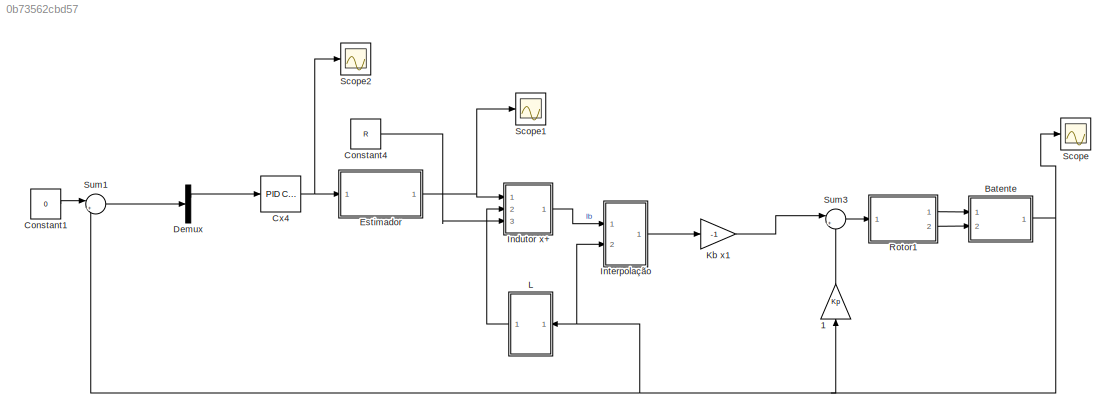
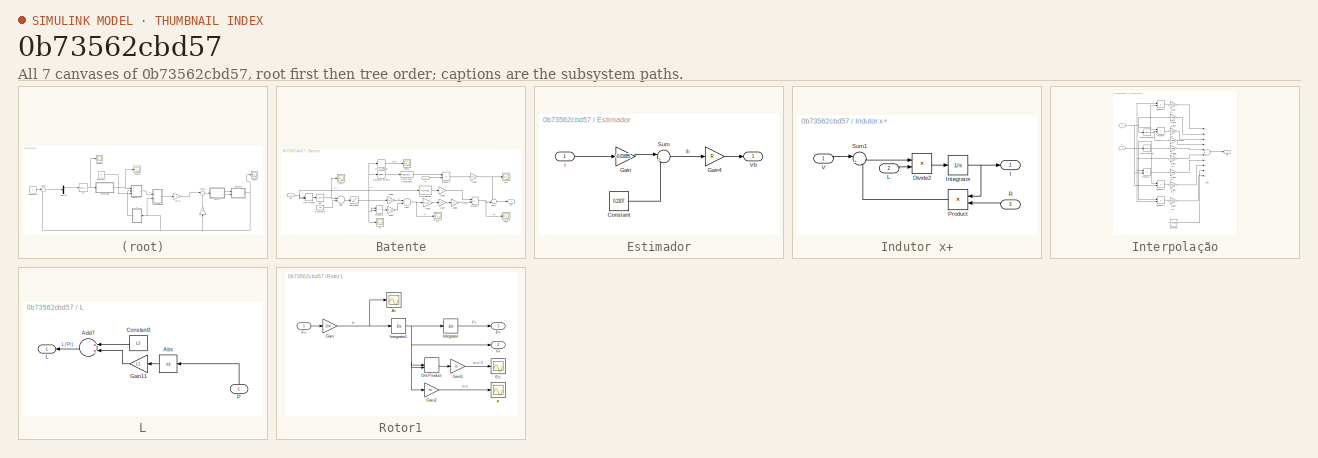
[diagram: thumbnail index - all 7 canvases of the model, root first then tree order]
MODEL slx_0b73562cbd57
KIND model
BLOCK [Gain]  1
  Gain = Kp
  OutDataTypeStr = Inherit: Inherit via internal rule
  ParamDataTypeStr = Inherit: Inherit via internal rule
  SaturateOnIntegerOverflow = off
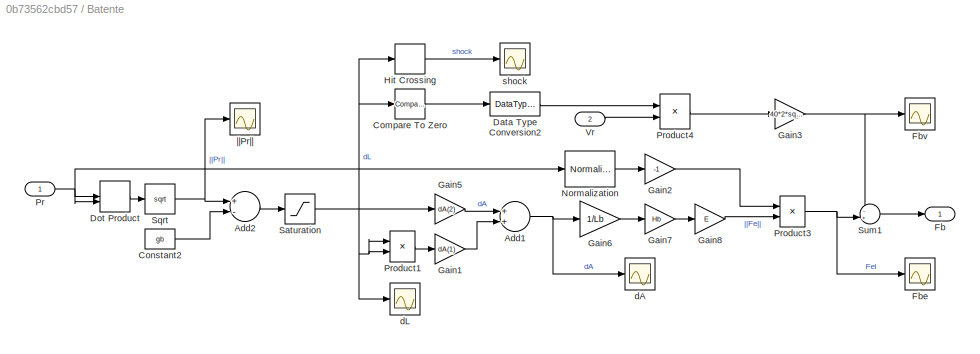
BLOCK [SubSystem] Batente
  FunctionWithSeparateData = off
  MaskHideContents = off
  MinAlgLoopOccurrences = off
  Opaque = off
  Ports = [2, 1]
  PropExecContextOutsideSubsystem = off
  RTWSystemCode = Auto
  RequestExecContextInheritance = off
BLOCK [Sum] Batente/Add1
  InputSameDT = off
  OutDataTypeStr = Inherit: Inherit via internal rule
  Ports = [2, 1]
  SaturateOnIntegerOverflow = off
BLOCK [Sum] Batente/Add2
  InputSameDT = off
  Inputs = +-
  OutDataTypeStr = Inherit: Inherit via internal rule
  Ports = [2, 1]
  SaturateOnIntegerOverflow = off
BLOCK [Reference] Batente/Compare To Zero  REF=simulink/Logic and Bit
Operations/Compare
To Zero
  OutDataTypeStr = boolean
  Ports = [1, 1]
  SourceBlock = simulink/Logic and Bit\nOperations/Compare\nTo Zero
  SourceType = Compare To Zero
  ZeroCross = on
  relop = >
BLOCK [Constant] Batente/Constant2
  Value = gb
BLOCK [DataTypeConversion] Batente/Data Type Conversion2
  RndMeth = Floor
  SaturateOnIntegerOverflow = off
BLOCK [DotProduct] Batente/Dot Product
  OutDataTypeStr = Inherit: Inherit via internal rule
BLOCK [Outport] Batente/Fb
  IconDisplay = Port number
BLOCK [Scope] Batente/Fbe
  DataFormat = StructureWithTime
  Floating = off
  LimitDataPoints = off
  NumInputPorts = 1
  Ports = [1]
  SampleTime = 0
  SaveName = ScopeData15
  ShowLegends = off
  TimeRange = 0.0002829354553492485
  YMax = 100000
  YMin = -100000
BLOCK [Scope] Batente/Fbv
  DataFormat = StructureWithTime
  Floating = off
  LimitDataPoints = off
  NumInputPorts = 1
  Ports = [1]
  SampleTime = 0
  SaveName = ScopeData8
  ShowLegends = off
  TimeRange = 0.1
  YMax = 225000
  YMin = -225000
BLOCK [Gain] Batente/Gain1
  Gain = dA(1)
  OutDataTypeStr = Inherit: Inherit via internal rule
  ParamDataTypeStr = Inherit: Inherit via internal rule
  SaturateOnIntegerOverflow = off
BLOCK [Gain] Batente/Gain2
  Gain = -1
  OutDataTypeStr = Inherit: Inherit via internal rule
  ParamDataTypeStr = Inherit: Inherit via internal rule
  SaturateOnIntegerOverflow = off
BLOCK [Gain] Batente/Gain3
  Gain = 40*2*sqrt(Kbb*m)
  OutDataTypeStr = Inherit: Inherit via internal rule
  ParamDataTypeStr = Inherit: Inherit via internal rule
  SaturateOnIntegerOverflow = off
BLOCK [Gain] Batente/Gain5
  Gain = dA(2)
  OutDataTypeStr = Inherit: Inherit via internal rule
  ParamDataTypeStr = Inherit: Inherit via internal rule
  SaturateOnIntegerOverflow = off
BLOCK [Gain] Batente/Gain6
  Gain = 1/Lb
  OutDataTypeStr = Inherit: Inherit via internal rule
  ParamDataTypeStr = Inherit: Inherit via internal rule
  SaturateOnIntegerOverflow = off
BLOCK [Gain] Batente/Gain7
  Gain = Hb
  OutDataTypeStr = Inherit: Inherit via internal rule
  ParamDataTypeStr = Inherit: Inherit via internal rule
  SaturateOnIntegerOverflow = off
BLOCK [Gain] Batente/Gain8
  Gain = E
  OutDataTypeStr = Inherit: Inherit via internal rule
  ParamDataTypeStr = Inherit: Inherit via internal rule
  SaturateOnIntegerOverflow = off
BLOCK [HitCross] Batente/Hit Crossing
  HitCrossingDirection = rising
  Ports = [1, 1]
BLOCK [Reference] Batente/Normalization  REF=dspmathops/Normalization
  Bias = 1e-10
  ColComp = on
  Dimension = 1
  LockScale = off
  NormOver = Each column
  NormType = 2-norm
  Ports = [1, 1]
  SourceBlock = dspmathops/Normalization
  SourceType = Normalization
  accumDataTypeStr = Inherit: Same as product output
  accumFracLength = 30
  accumLastDataTypeStr = Inherit: Same as product output
  accumMode = Same as product output
  accumWordLength = 32
  additionalParams = off
  allowOverrides = on
  outputDataTypeStr = Inherit: Same as product output
  outputFracLength = 32
  outputLastDataTypeStr = Inherit: Same as product output
  outputMax = []
  outputMin = []
  outputMode = Same as product output
  outputWordLength = 32
  overflowMode = off
  prodOutputDataTypeStr = Inherit: Same as input
  prodOutputFracLength = 32
  prodOutputLastDataTypeStr = Inherit: Same as input
  prodOutputMode = Same as input
  prodOutputWordLength = 32
  roundingMode = Floor
BLOCK [Inport] Batente/Pr
  IconDisplay = Port number
BLOCK [Product] Batente/Product1
  InputSameDT = off
  OutDataTypeStr = Inherit: Inherit via internal rule
  Ports = [2, 1]
  RndMeth = Floor
  SaturateOnIntegerOverflow = off
BLOCK [Product] Batente/Product3
  InputSameDT = off
  OutDataTypeStr = Inherit: Inherit via internal rule
  Ports = [2, 1]
  RndMeth = Floor
  SaturateOnIntegerOverflow = off
BLOCK [Product] Batente/Product4
  InputSameDT = off
  OutDataTypeStr = Inherit: Inherit via internal rule
  Ports = [2, 1]
  RndMeth = Floor
  SaturateOnIntegerOverflow = off
BLOCK [Saturate] Batente/Saturation
  InputPortMap = u0
  LowerLimit = 0
  Ports = [1, 1]
  UpperLimit = Inf
BLOCK [Sqrt] Batente/Sqrt
BLOCK [Sum] Batente/Sum1
  IconShape = round
  InputSameDT = off
  Inputs = -+|
  OutDataTypeStr = Inherit: Inherit via internal rule
  Ports = [2, 1]
  SaturateOnIntegerOverflow = off
BLOCK [Inport] Batente/Vr
  IconDisplay = Port number
  Port = 2
BLOCK [Scope] Batente/dA
  DataFormat = StructureWithTime
  Floating = off
  LimitDataPoints = off
  NumInputPorts = 1
  Ports = [1]
  SampleTime = 0
  SaveName = ScopeData4
  ShowLegends = off
  TimeRange = 0.0002829354553492485
  YMax = 3.9158e-05
  YMin = 3.91545e-05
BLOCK [Scope] Batente/dL
  DataFormat = StructureWithTime
  Floating = off
  LimitDataPoints = off
  NumInputPorts = 1
  Ports = [1]
  SampleTime = 0
  SaveName = ScopeData7
  ShowLegends = off
  TimeRange = 0.1
  YMax = 1.4315e-06
  YMin = 1.4215e-06
BLOCK [Scope] Batente/shock
  DataFormat = StructureWithTime
  Floating = off
  LimitDataPoints = off
  NumInputPorts = 1
  Ports = [1]
  SampleTime = 0
  SaveName = ScopeData19
  ShowLegends = off
  TimeRange = 0.0002829354553492485
  YMax = 5.54639e-16
  YMin = 5.54637e-16
BLOCK [Scope] Batente/||Pr||
  DataFormat = StructureWithTime
  Floating = off
  LimitDataPoints = off
  NumInputPorts = 1
  Ports = [1]
  SampleTime = 0
  SaveName = ScopeData18
  ShowLegends = off
  TimeRange = 0.0002829354553492485
  YMax = 0
  YMin = -2.75
BLOCK [Constant] Constant1
  Value = 0
BLOCK [Constant] Constant4
  Value = R
BLOCK [Reference] Cx4  REF=simulink/Continuous/PID Controller
  AntiWindupMode = none
  Controller = PID
  D = 0.00498268867902985
  DOutDataTypeStr = Inherit: Inherit via internal rule
  DOutMax = []
  DOutMin = []
  DParamDataTypeStr = Inherit: Inherit via internal rule
  DParamMax = []
  DParamMin = []
  ExternalReset = none
  FilterContinuousStateAttributes = ''
  FilterMethod = Forward Euler
  FilterOutDataTypeStr = Inherit: Inherit via internal rule
  FilterOutMax = []
  FilterOutMin = []
  FilterRTWStateStorageClass = Auto
  FilterStateMustResolveToSignalObject = off
  Form = Ideal
  I = 23.9651146885149
  IOutDataTypeStr = Inherit: Inherit via internal rule
  IOutMax = []
  IOutMin = []
  IParamDataTypeStr = Inherit: Inherit via internal rule
  IParamMax = []
  IParamMin = []
  IgnoreLimit = off
  InitialConditionForFilter = 0
  InitialConditionForIntegrator = 0
  InitialConditionSource = internal
  IntegratorContinuousStateAttributes = ''
  IntegratorMethod = Forward Euler
  IntegratorOutDataTypeStr = Inherit: Inherit via internal rule
  IntegratorOutMax = []
  IntegratorOutMin = []
  IntegratorRTWStateStorageClass = Auto
  IntegratorStateMustResolveToSignalObject = off
  Kb = 1
  KbOutDataTypeStr = Inherit: Inherit via internal rule
  KbOutMax = []
  KbOutMin = []
  KbParamDataTypeStr = Inherit: Inherit via internal rule
  KbParamMax = []
  KbParamMin = []
  Kt = 1
  KtOutDataTypeStr = Inherit: Inherit via internal rule
  KtOutMax = []
  KtOutMin = []
  KtParamDataTypeStr = Inherit: Inherit via internal rule
  KtParamMax = []
  KtParamMin = []
  LimitOutput = off
  LinearizeAsGain = on
  LockScale = off
  LowerSaturationLimit = -inf
  N = 6755.34339596169
  NOutDataTypeStr = Inherit: Inherit via internal rule
  NOutMax = []
  NOutMin = []
  NParamDataTypeStr = Inherit: Inherit via internal rule
  NParamMax = []
  NParamMin = []
  P = 631928.6408176
  POutDataTypeStr = Inherit: Inherit via internal rule
  POutMax = []
  POutMin = []
  PParamDataTypeStr = Inherit: Inherit via internal rule
  PParamMax = []
  PParamMin = []
  Ports = [1, 1]
  RndMeth = Floor
  SampleTime = 1
  SaturateOnIntegerOverflow = off
  SaturationOutDataTypeStr = Inherit: Same as input
  SaturationOutMax = []
  SaturationOutMin = []
  SourceBlock = simulink/Continuous/PID Controller
  SourceType = PID 1dof
  SumAccumDataTypeStr = Inherit: Inherit via internal rule
  SumDAccumDataTypeStr = Inherit: Inherit via internal rule
  SumDOutDataTypeStr = Inherit: Inherit via internal rule
  SumDOutMax = []
  SumDOutMin = []
  SumI1AccumDataTypeStr = Inherit: Inherit via internal rule
  SumI1OutDataTypeStr = Inherit: Inherit via internal rule
  SumI1OutMax = []
  SumI1OutMin = []
  SumI2AccumDataTypeStr = Inherit: Inherit via internal rule
  SumI2OutDataTypeStr = Inherit: Inherit via internal rule
  SumI2OutMax = []
  SumI2OutMin = []
  SumI3AccumDataTypeStr = Inherit: Inherit via internal rule
  SumI3OutDataTypeStr = Inherit: Inherit via internal rule
  SumI3OutMax = []
  SumI3OutMin = []
  SumOutDataTypeStr = Inherit: Inherit via internal rule
  SumOutMax = []
  SumOutMin = []
  TimeDomain = Continuous-time
  TrackingMode = off
  UpperSaturationLimit = inf
  ZeroCross = on
BLOCK [Demux] Demux
  DisplayOption = bar
  Outputs = 2
  Ports = [1, 2]
BLOCK [SubSystem] Estimador
  FunctionWithSeparateData = off
  MaskHideContents = off
  MinAlgLoopOccurrences = off
  Opaque = off
  Ports = [1, 1]
  PropExecContextOutsideSubsystem = off
  RTWSystemCode = Auto
  RequestExecContextInheritance = off
BLOCK [Constant] Estimador/Constant
  Value = 0.2107
BLOCK [Gain] Estimador/Gain
  Gain = -0.01685
  OutDataTypeStr = Inherit: Inherit via internal rule
  ParamDataTypeStr = Inherit: Inherit via internal rule
  SaturateOnIntegerOverflow = off
BLOCK [Gain] Estimador/Gain4
  Gain = R
  OutDataTypeStr = Inherit: Inherit via internal rule
  ParamDataTypeStr = Inherit: Inherit via internal rule
  SaturateOnIntegerOverflow = off
BLOCK [Sum] Estimador/Sum
  IconShape = round
  InputSameDT = off
  Inputs = |++
  OutDataTypeStr = Inherit: Inherit via internal rule
  Ports = [2, 1]
  SaturateOnIntegerOverflow = off
BLOCK [Outport] Estimador/Vb
  IconDisplay = Port number
BLOCK [Inport] Estimador/i 
  IconDisplay = Port number
BLOCK [SubSystem] Indutor x+
  FunctionWithSeparateData = off
  MaskHideContents = off
  MinAlgLoopOccurrences = off
  Opaque = off
  Ports = [3, 1]
  PropExecContextOutsideSubsystem = off
  RTWSystemCode = Auto
  RequestExecContextInheritance = off
BLOCK [Product] Indutor x+/Divide2
  InputSameDT = off
  Inputs = */
  OutDataTypeStr = Inherit: Inherit via internal rule
  Ports = [2, 1]
  RndMeth = Floor
  SaturateOnIntegerOverflow = off
BLOCK [Outport] Indutor x+/I
  IconDisplay = Port number
BLOCK [Integrator] Indutor x+/Integrator
  Ports = [1, 1]
BLOCK [Inport] Indutor x+/L
  IconDisplay = Port number
  Port = 2
BLOCK [Product] Indutor x+/Product
  InputSameDT = off
  OutDataTypeStr = Inherit: Inherit via internal rule
  Ports = [2, 1]
  RndMeth = Floor
  SaturateOnIntegerOverflow = off
BLOCK [Inport] Indutor x+/R
  IconDisplay = Port number
  Port = 3
BLOCK [Sum] Indutor x+/Sum1
  IconShape = round
  InputSameDT = off
  Inputs = |+-
  OutDataTypeStr = Inherit: Inherit via internal rule
  Ports = [2, 1]
  SaturateOnIntegerOverflow = off
BLOCK [Inport] Indutor x+/V
  IconDisplay = Port number
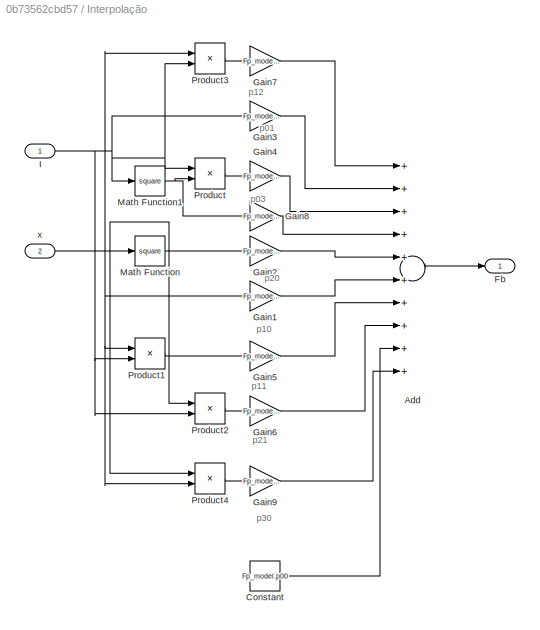
BLOCK [SubSystem] Interpolação
  FunctionWithSeparateData = off
  MaskHideContents = off
  MinAlgLoopOccurrences = off
  Opaque = off
  Ports = [2, 1]
  PropExecContextOutsideSubsystem = off
  RTWSystemCode = Auto
  RequestExecContextInheritance = off
BLOCK [Sum] Interpolação/Add
  InputSameDT = off
  Inputs = ++++++++++
  OutDataTypeStr = Inherit: Inherit via internal rule
  Ports = [10, 1]
  SaturateOnIntegerOverflow = off
BLOCK [Constant] Interpolação/Constant
  Value = Fp_model.p00
BLOCK [Outport] Interpolação/Fb
  IconDisplay = Port number
BLOCK [Gain] Interpolação/Gain1
  Gain = Fp_model.p10
  OutDataTypeStr = Inherit: Inherit via internal rule
  ParamDataTypeStr = Inherit: Inherit via internal rule
  SaturateOnIntegerOverflow = off
BLOCK [Gain] Interpolação/Gain2
  Gain = Fp_model.p20
  OutDataTypeStr = Inherit: Inherit via internal rule
  ParamDataTypeStr = Inherit: Inherit via internal rule
  SaturateOnIntegerOverflow = off
BLOCK [Gain] Interpolação/Gain3
  Gain = Fp_model.p01
  OutDataTypeStr = Inherit: Inherit via internal rule
  ParamDataTypeStr = Inherit: Inherit via internal rule
  SaturateOnIntegerOverflow = off
BLOCK [Gain] Interpolação/Gain4
  Gain = Fp_model.p03
  OutDataTypeStr = Inherit: Inherit via internal rule
  ParamDataTypeStr = Inherit: Inherit via internal rule
  SaturateOnIntegerOverflow = off
BLOCK [Gain] Interpolação/Gain5
  Gain = Fp_model.p11
  OutDataTypeStr = Inherit: Inherit via internal rule
  ParamDataTypeStr = Inherit: Inherit via internal rule
  SaturateOnIntegerOverflow = off
BLOCK [Gain] Interpolação/Gain6
  Gain = Fp_model.p21
  OutDataTypeStr = Inherit: Inherit via internal rule
  ParamDataTypeStr = Inherit: Inherit via internal rule
  SaturateOnIntegerOverflow = off
BLOCK [Gain] Interpolação/Gain7
  Gain = Fp_model.p12
  OutDataTypeStr = Inherit: Inherit via internal rule
  ParamDataTypeStr = Inherit: Inherit via internal rule
  SaturateOnIntegerOverflow = off
BLOCK [Gain] Interpolação/Gain8
  Gain = Fp_model.p02
  OutDataTypeStr = Inherit: Inherit via internal rule
  ParamDataTypeStr = Inherit: Inherit via internal rule
  SaturateOnIntegerOverflow = off
BLOCK [Gain] Interpolação/Gain9
  Gain = Fp_model.p30
  OutDataTypeStr = Inherit: Inherit via internal rule
  ParamDataTypeStr = Inherit: Inherit via internal rule
  SaturateOnIntegerOverflow = off
BLOCK [Inport] Interpolação/I
  IconDisplay = Port number
BLOCK [Math] Interpolação/Math Function
  Operator = square
  Ports = [1, 1]
BLOCK [Math] Interpolação/Math Function1
  Operator = square
  Ports = [1, 1]
BLOCK [Product] Interpolação/Product
  InputSameDT = off
  OutDataTypeStr = Inherit: Inherit via internal rule
  Ports = [2, 1]
  SaturateOnIntegerOverflow = off
BLOCK [Product] Interpolação/Product1
  InputSameDT = off
  OutDataTypeStr = Inherit: Inherit via internal rule
  Ports = [2, 1]
  SaturateOnIntegerOverflow = off
BLOCK [Product] Interpolação/Product2
  InputSameDT = off
  OutDataTypeStr = Inherit: Inherit via internal rule
  Ports = [2, 1]
  SaturateOnIntegerOverflow = off
BLOCK [Product] Interpolação/Product3
  InputSameDT = off
  OutDataTypeStr = Inherit: Inherit via internal rule
  Ports = [2, 1]
  SaturateOnIntegerOverflow = off
BLOCK [Product] Interpolação/Product4
  InputSameDT = off
  OutDataTypeStr = Inherit: Inherit via internal rule
  Ports = [2, 1]
  SaturateOnIntegerOverflow = off
BLOCK [Inport] Interpolação/x
  IconDisplay = Port number
  Port = 2
BLOCK [Gain] Kb x1
  Gain = -1
  OutDataTypeStr = Inherit: Inherit via internal rule
  ParamDataTypeStr = Inherit: Inherit via internal rule
  SaturateOnIntegerOverflow = off
BLOCK [SubSystem] L
  FunctionWithSeparateData = off
  MaskHideContents = off
  MinAlgLoopOccurrences = off
  Opaque = off
  Ports = [1, 1]
  PropExecContextOutsideSubsystem = off
  RTWSystemCode = Auto
  RequestExecContextInheritance = off
BLOCK [Abs] L/Abs
  SaturateOnIntegerOverflow = off
BLOCK [Sum] L/Add7
  InputSameDT = off
  OutDataTypeStr = Inherit: Inherit via internal rule
  Ports = [2, 1]
  SaturateOnIntegerOverflow = off
BLOCK [Constant] L/Constant3
  Value = L2
BLOCK [Gain] L/Gain11
  Gain = L1
  OutDataTypeStr = Inherit: Inherit via internal rule
  ParamDataTypeStr = Inherit: Inherit via internal rule
  SaturateOnIntegerOverflow = off
BLOCK [Outport] L/L
  IconDisplay = Port number
BLOCK [Inport] L/P
  IconDisplay = Port number
BLOCK [SubSystem] Rotor1
  FunctionWithSeparateData = off
  MaskHideContents = off
  MinAlgLoopOccurrences = off
  Opaque = off
  Ports = [1, 2]
  PropExecContextOutsideSubsystem = off
  RTWSystemCode = Auto
  RequestExecContextInheritance = off
BLOCK [Scope] Rotor1/Ar
  DataFormat = StructureWithTime
  Floating = off
  LimitDataPoints = off
  NumInputPorts = 1
  Ports = [1]
  SampleTime = 0
  SaveName = ScopeData9
  ShowLegends = off
  TimeRange = 1
  YMax = 200000
  YMin = -200000
BLOCK [DotProduct] Rotor1/Dot Product
  OutDataTypeStr = Inherit: Inherit via internal rule
BLOCK [Scope] Rotor1/Ec
  DataFormat = StructureWithTime
  Floating = off
  LimitDataPoints = off
  NumInputPorts = 1
  Ports = [1]
  SampleTime = 0
  SaveName = ScopeData16
  ShowLegends = off
  TimeRange = 0.25
  YMax = 0.09
  YMin = 0
BLOCK [Inport] Rotor1/Fr
  IconDisplay = Port number
BLOCK [Gain] Rotor1/Gain
  Gain = 1/m
  OutDataTypeStr = Inherit: Inherit via internal rule
  ParamDataTypeStr = Inherit: Inherit via internal rule
  SaturateOnIntegerOverflow = off
BLOCK [Gain] Rotor1/Gain1
  Gain = m
  OutDataTypeStr = Inherit: Inherit via internal rule
  ParamDataTypeStr = Inherit: Inherit via internal rule
  SaturateOnIntegerOverflow = off
BLOCK [Gain] Rotor1/Gain2
  Gain = m
  OutDataTypeStr = Inherit: Inherit via internal rule
  ParamDataTypeStr = Inherit: Inherit via internal rule
  SaturateOnIntegerOverflow = off
BLOCK [Integrator] Rotor1/Integrator
  InitialCondition = [.001 .002]*1e-3
  LowerSaturationLimit = -Inf
  Ports = [1, 1]
  UpperSaturationLimit = Inf
BLOCK [Integrator] Rotor1/Integrator1
  Ports = [1, 1]
BLOCK [Outport] Rotor1/Pr
  IconDisplay = Port number
BLOCK [Outport] Rotor1/Vr
  IconDisplay = Port number
  Port = 2
BLOCK [Scope] Rotor1/p
  DataFormat = StructureWithTime
  Floating = off
  LimitDataPoints = off
  NumInputPorts = 1
  Ports = [1]
  SampleTime = 0
  SaveName = ScopeData17
  ShowLegends = off
  TimeRange = 1
  YMax = 200000
  YMin = -200000
BLOCK [Scope] Scope
  DataFormat = StructureWithTime
  Floating = off
  LimitDataPoints = off
  NumInputPorts = 1
  Ports = [1]
  SampleTime = 0
  ShowLegends = off
  YMax = 0.0003
  YMin = -5e-05
BLOCK [Scope] Scope1
  DataFormat = StructureWithTime
  Floating = off
  LimitDataPoints = off
  NumInputPorts = 1
  Ports = [1]
  SampleTime = 0
  SaveName = ScopeData1
  ShowLegends = off
  YMax = -0.000285
  YMin = -0.000315
BLOCK [Scope] Scope2
  DataFormat = StructureWithTime
  Floating = off
  LimitDataPoints = off
  NumInputPorts = 1
  Ports = [1]
  SampleTime = 0
  SaveName = ScopeData2
  ShowLegends = off
  YMax = -0.000285
  YMin = -0.000315
BLOCK [Sum] Sum1
  IconShape = round
  InputSameDT = off
  Inputs = |+-
  OutDataTypeStr = Inherit: Inherit via internal rule
  Ports = [2, 1]
  SaturateOnIntegerOverflow = off
BLOCK [Sum] Sum3
  IconShape = round
  InputSameDT = off
  Inputs = |++
  OutDataTypeStr = Inherit: Inherit via internal rule
  Ports = [2, 1]
  SaturateOnIntegerOverflow = off
ANNOTATION Interpolação: p01
ANNOTATION Interpolação: p03
ANNOTATION Interpolação: p10
ANNOTATION Interpolação: p11
ANNOTATION Interpolação: p12
ANNOTATION Interpolação: p20
ANNOTATION Interpolação: p21
ANNOTATION Interpolação: p30
LINE  1:1 -> Sum3:2
NET Batente/Add1:1 -> Batente/Gain6:1, Batente/dA:1
LINE Batente/Add2:1 -> Batente/Saturation:1
LINE Batente/Compare To Zero:1 -> Batente/Data Type Conversion2:1
LINE Batente/Constant2:1 -> Batente/Add2:2
LINE Batente/Data Type Conversion2:1 -> Batente/Product4:1
LINE Batente/Dot Product:1 -> Batente/Sqrt:1
LINE Batente/Gain1:1 -> Batente/Add1:2
LINE Batente/Gain2:1 -> Batente/Product3:1
NET Batente/Gain3:1 -> Batente/Fbv:1, Batente/Sum1:1
LINE Batente/Gain5:1 -> Batente/Add1:1
LINE Batente/Gain6:1 -> Batente/Gain7:1
LINE Batente/Gain7:1 -> Batente/Gain8:1
LINE Batente/Gain8:1 -> Batente/Product3:2
LINE Batente/Hit Crossing:1 -> Batente/shock:1
LINE Batente/Normalization:1 -> Batente/Gain2:1
NET Batente/Pr:1 -> Batente/Dot Product:1, Batente/Dot Product:2, Batente/Normalization:1
LINE Batente/Product1:1 -> Batente/Gain1:1
NET Batente/Product3:1 -> Batente/Fbe:1, Batente/Sum1:2
LINE Batente/Product4:1 -> Batente/Gain3:1
NET Batente/Saturation:1 -> Batente/Compare To Zero:1, Batente/Gain5:1, Batente/Hit Crossing:1, Batente/Product1:1, Batente/Product1:2, Batente/dL:1
NET Batente/Sqrt:1 -> Batente/Add2:1, Batente/||Pr||:1
LINE Batente/Sum1:1 -> Batente/Fb:1
LINE Batente/Vr:1 -> Batente/Product4:2
NET Batente:1 ->  1:1, Interpolação:2, L:1, Scope:1, Sum1:2
LINE Constant1:1 -> Sum1:1
LINE Constant4:1 -> Indutor x+:3
NET Cx4:1 -> Estimador:1, Scope2:1
LINE Demux:1 -> Cx4:1
LINE Estimador/Constant:1 -> Estimador/Sum:2
LINE Estimador/Gain4:1 -> Estimador/Vb:1
LINE Estimador/Gain:1 -> Estimador/Sum:1
LINE Estimador/Sum:1 -> Estimador/Gain4:1
LINE Estimador/i :1 -> Estimador/Gain:1
NET Estimador:1 -> Indutor x+:1, Scope1:1
LINE Indutor x+/Divide2:1 -> Indutor x+/Integrator:1
NET Indutor x+/Integrator:1 -> Indutor x+/I:1, Indutor x+/Product:1
LINE Indutor x+/L:1 -> Indutor x+/Divide2:2
LINE Indutor x+/Product:1 -> Indutor x+/Sum1:2
LINE Indutor x+/R:1 -> Indutor x+/Product:2
LINE Indutor x+/Sum1:1 -> Indutor x+/Divide2:1
LINE Indutor x+/V:1 -> Indutor x+/Sum1:1
LINE Indutor x+:1 -> Interpolação:1
LINE Interpolação/Add:1 -> Interpolação/Fb:1
LINE Interpolação/Constant:1 -> Interpolação/Add:9
LINE Interpolação/Gain1:1 -> Interpolação/Add:6
LINE Interpolação/Gain2:1 -> Interpolação/Add:5
LINE Interpolação/Gain3:1 -> Interpolação/Add:2
LINE Interpolação/Gain4:1 -> Interpolação/Add:3
LINE Interpolação/Gain5:1 -> Interpolação/Add:7
LINE Interpolação/Gain6:1 -> Interpolação/Add:8
LINE Interpolação/Gain7:1 -> Interpolação/Add:1
LINE Interpolação/Gain8:1 -> Interpolação/Add:4
LINE Interpolação/Gain9:1 -> Interpolação/Add:10
NET Interpolação/I:1 -> Interpolação/Gain3:1, Interpolação/Math Function1:1, Interpolação/Product1:2, Interpolação/Product2:2, Interpolação/Product3:2, Interpolação/Product:1
NET Interpolação/Math Function1:1 -> Interpolação/Gain8:1, Interpolação/Product:2
NET Interpolação/Math Function:1 -> Interpolação/Gain2:1, Interpolação/Product2:1, Interpolação/Product4:1
LINE Interpolação/Product1:1 -> Interpolação/Gain5:1
LINE Interpolação/Product2:1 -> Interpolação/Gain6:1
LINE Interpolação/Product3:1 -> Interpolação/Gain7:1
LINE Interpolação/Product4:1 -> Interpolação/Gain9:1
LINE Interpolação/Product:1 -> Interpolação/Gain4:1
NET Interpolação/x:1 -> Interpolação/Gain1:1, Interpolação/Math Function:1, Interpolação/Product1:1, Interpolação/Product3:1, Interpolação/Product4:2
LINE Interpolação:1 -> Kb x1:1
LINE Kb x1:1 -> Sum3:1
LINE L/Abs:1 -> L/Gain11:1
LINE L/Add7:1 -> L/L:1
LINE L/Constant3:1 -> L/Add7:1
LINE L/Gain11:1 -> L/Add7:2
LINE L/P:1 -> L/Abs:1
LINE L:1 -> Indutor x+:2
LINE Rotor1/Dot Product:1 -> Rotor1/Gain1:1
LINE Rotor1/Fr:1 -> Rotor1/Gain:1
LINE Rotor1/Gain1:1 -> Rotor1/Ec:1
LINE Rotor1/Gain2:1 -> Rotor1/p:1
NET Rotor1/Gain:1 -> Rotor1/Ar:1, Rotor1/Integrator1:1
NET Rotor1/Integrator1:1 -> Rotor1/Dot Product:1, Rotor1/Dot Product:2, Rotor1/Gain2:1, Rotor1/Integrator:1, Rotor1/Vr:1
LINE Rotor1/Integrator:1 -> Rotor1/Pr:1
LINE Rotor1:1 -> Batente:1
LINE Rotor1:2 -> Batente:2
LINE Sum1:1 -> Demux:1
LINE Sum3:1 -> Rotor1:1
note: NET lines group one-source signal fan-out (src -> all destinations, sorted); 1:1 wires keep LINE
